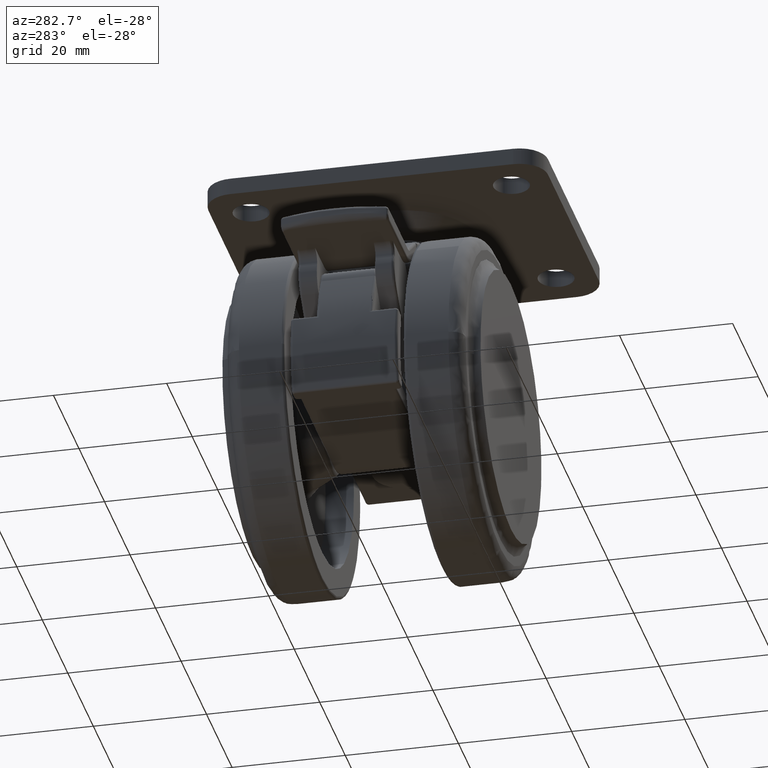
[diagram: clean part render]
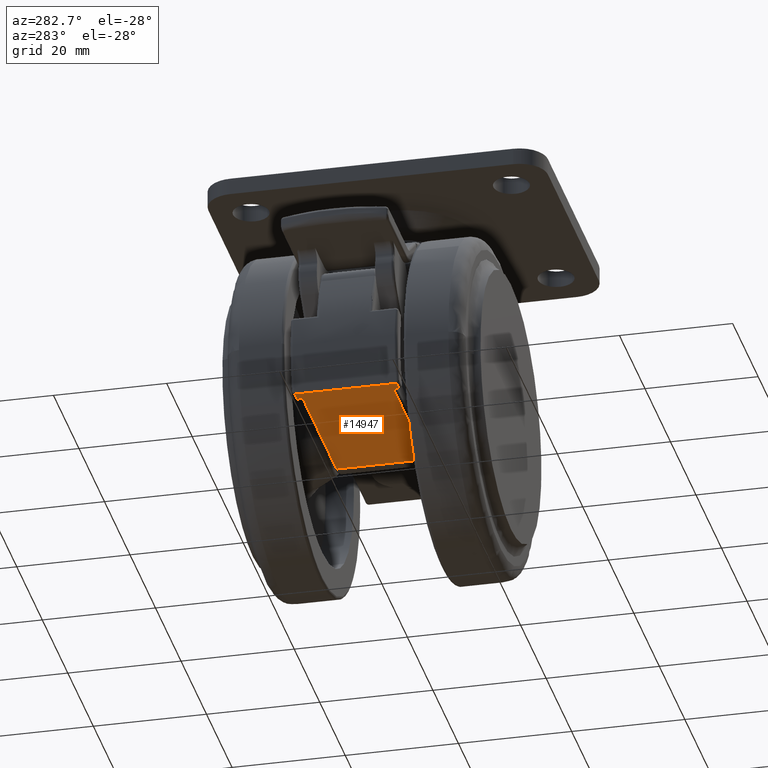
[diagram: same view with one face highlighted and labeled with its STEP entity id]
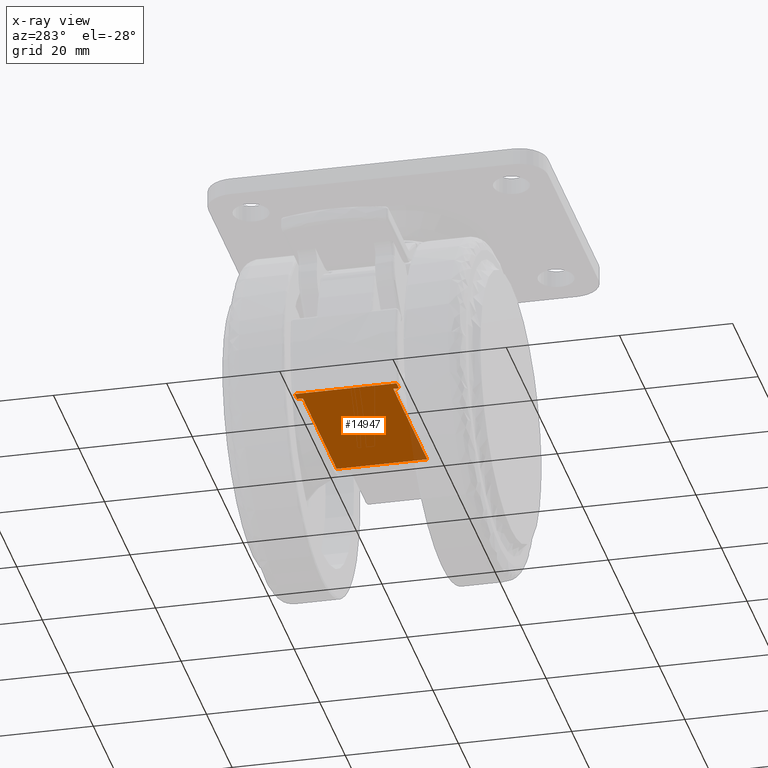
[diagram: x-ray of the same camera — body ghosted, the highlighted face saturated]
A machine part, auxiliary view. The second image highlights one B-rep face of the part: STEP entity #14947.
The next image is the same camera in x-ray: the body ghosted, the highlighted face saturated — about 4% of this face is hidden behind the body in this view.
In plain terms, the highlighted face is a freeform B-spline surface patch.
Its self-contained STEP definition (entity closure, byte-faithful):
#14004=CARTESIAN_POINT('',(-28.394541729001350,8.999999999999901,-8.500000000000000));
#14005=VERTEX_POINT('',#14004);
#14025=CARTESIAN_POINT('',(-26.522687288762299,8.999999999999901,-8.500000000000000));
#14026=VERTEX_POINT('',#14025);
#14037=CARTESIAN_POINT('',(-28.394541729001350,8.999999999999901,-8.500000000000000));
#14038=CARTESIAN_POINT('',(-26.522687288762299,8.999999999999901,-8.500000000000000));
#14039=QUASI_UNIFORM_CURVE('',1,(#14037,#14038),.UNSPECIFIED.,.F.,.U.);
#14040=EDGE_CURVE('',#14005,#14026,#14039,.T.);
#14163=CARTESIAN_POINT('',(-28.394541729001350,-8.999999999999890,-8.500000000000000));
#14164=VERTEX_POINT('',#14163);
#14176=CARTESIAN_POINT('',(-28.394541729001350,-8.999999999999890,-8.500000000000000));
#14177=CARTESIAN_POINT('',(-28.394541729001350,8.999999999999901,-8.500000000000000));
#14178=QUASI_UNIFORM_CURVE('',1,(#14176,#14177),.UNSPECIFIED.,.F.,.U.);
#14179=EDGE_CURVE('',#14164,#14005,#14178,.T.);
#14237=CARTESIAN_POINT('',(-26.522687288762199,-8.999999999999890,-8.500000000000000));
#14238=VERTEX_POINT('',#14237);
#14251=CARTESIAN_POINT('',(-26.522687288762199,-8.999999999999890,-8.500000000000000));
#14252=CARTESIAN_POINT('',(-28.394541729001350,-8.999999999999890,-8.500000000000000));
#14253=QUASI_UNIFORM_CURVE('',1,(#14251,#14252),.UNSPECIFIED.,.F.,.U.);
#14254=EDGE_CURVE('',#14238,#14164,#14253,.T.);
#14317=CARTESIAN_POINT('',(0.0,-7.999999999999900,-8.500000000000000));
#14318=VERTEX_POINT('',#14317);
#14387=CARTESIAN_POINT('',(-26.522687288762199,-7.999999999999889,-8.500000000000000));
#14388=VERTEX_POINT('',#14387);
#14389=CARTESIAN_POINT('',(-26.522687288762199,-7.999999999999889,-8.500000000000000));
#14390=CARTESIAN_POINT('',(-26.522687288762199,-8.999999999999890,-8.500000000000000));
#14391=QUASI_UNIFORM_CURVE('',1,(#14389,#14390),.UNSPECIFIED.,.F.,.U.);
#14392=EDGE_CURVE('',#14388,#14238,#14391,.T.);
#14430=CARTESIAN_POINT('',(0.0,-7.999999999999900,-8.500000000000000));
#14431=CARTESIAN_POINT('',(-26.522687288762199,-7.999999999999889,-8.500000000000000));
#14432=QUASI_UNIFORM_CURVE('',1,(#14430,#14431),.UNSPECIFIED.,.F.,.U.);
#14433=EDGE_CURVE('',#14318,#14388,#14432,.T.);
#14916=CARTESIAN_POINT('',(1.418307304329486,-9.899099965112390,-8.500000000000000));
#14917=CARTESIAN_POINT('',(-29.812849794931800,-9.899099965112390,-8.500000000000000));
#14918=CARTESIAN_POINT('',(1.418307304329486,9.899100447910019,-8.500000000000000));
#14919=CARTESIAN_POINT('',(-29.812849794931800,9.899100447910019,-8.500000000000000));
#14920=B_SPLINE_SURFACE_WITH_KNOTS('',1,1,((#14916,#14918),(#14917,#14919)),.UNSPECIFIED.,.F.,.F.,.U.,(2,2),(2,2),(0.0,31.231157099261281),(0.0,19.798200413022411),.UNSPECIFIED.);
#14921=CARTESIAN_POINT('',(0.0,7.999999999999900,-8.500000000000000));
#14922=VERTEX_POINT('',#14921);
#14923=CARTESIAN_POINT('',(0.0,7.999999999999900,-8.500000000000000));
#14924=CARTESIAN_POINT('',(0.0,-7.999999999999900,-8.500000000000000));
#14925=QUASI_UNIFORM_CURVE('',1,(#14923,#14924),.UNSPECIFIED.,.F.,.U.);
#14926=EDGE_CURVE('',#14922,#14318,#14925,.T.);
#14927=ORIENTED_EDGE('',*,*,#14926,.T.);
#14928=ORIENTED_EDGE('',*,*,#14433,.T.);
#14929=ORIENTED_EDGE('',*,*,#14392,.T.);
#14930=ORIENTED_EDGE('',*,*,#14254,.T.);
#14931=ORIENTED_EDGE('',*,*,#14179,.T.);
#14932=ORIENTED_EDGE('',*,*,#14040,.T.);
#14933=CARTESIAN_POINT('',(-26.522687288762299,7.999999999999900,-8.500000000000000));
#14934=VERTEX_POINT('',#14933);
#14935=CARTESIAN_POINT('',(-26.522687288762299,8.999999999999901,-8.500000000000000));
#14936=CARTESIAN_POINT('',(-26.522687288762299,7.999999999999900,-8.500000000000000));
#14937=QUASI_UNIFORM_CURVE('',1,(#14935,#14936),.UNSPECIFIED.,.F.,.U.);
#14938=EDGE_CURVE('',#14026,#14934,#14937,.T.);
#14939=ORIENTED_EDGE('',*,*,#14938,.T.);
#14940=CARTESIAN_POINT('',(-26.522687288762299,7.999999999999900,-8.500000000000000));
#14941=CARTESIAN_POINT('',(0.0,7.999999999999900,-8.500000000000000));
#14942=QUASI_UNIFORM_CURVE('',1,(#14940,#14941),.UNSPECIFIED.,.F.,.U.);
#14943=EDGE_CURVE('',#14934,#14922,#14942,.T.);
#14944=ORIENTED_EDGE('',*,*,#14943,.T.);
#14945=EDGE_LOOP('',(#14927,#14928,#14929,#14930,#14931,#14932,#14939,#14944));
#14946=FACE_OUTER_BOUND('',#14945,.T.);
#14947=ADVANCED_FACE('',(#14946),#14920,.T.);